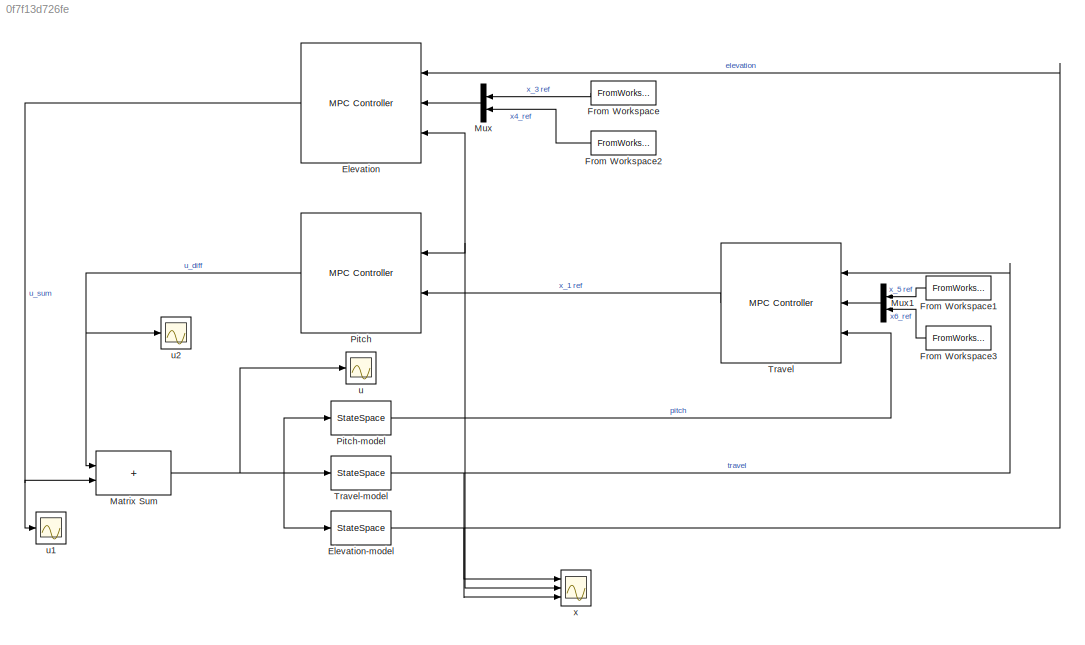
MODEL slx_0f7f13d726fe
KIND model
CONFIG AbsTol = auto
CONFIG EnableMultiTasking = off
CONFIG FixedStep = auto
CONFIG MaxStep = auto
CONFIG MinStep = auto
CONFIG RelTol = 1e-3
CONFIG SampleTimeConstraint = Unconstrained
CONFIG SolverName = VariableStepAuto
CONFIG StartTime = 0.0
CONFIG StopTime = 10.0
BLOCK [Reference] Elevation  REF=mpclib/MPC Controller  (lib defined in mdl_ae329e0e0455)
  NameLocation = top
  Ports = [3, 1]
  SCDEnableBlockLinearizationSpecification = on
  SourceBlock = mpclib/MPC Controller
  SourceProductBaseCode = MP
  SourceType = MPC
BLOCK [StateSpace] Elevation-model
  A = [0 1;-1.283 -0.11]
  B = B_elev
  C = [1 0;0 1]
  D = D_elev
  InitialCondition = 0
  Ports = [1, 1]
BLOCK [FromWorkspace] From Workspace
  NameLocation = top
  OutputAfterFinalValue = Holding final value
  SampleTime = 0.1
  VariableName = x3_ref
BLOCK [FromWorkspace] From Workspace1
  NameLocation = top
  OutputAfterFinalValue = Holding final value
  SampleTime = 0.1
  VariableName = x5_ref
BLOCK [FromWorkspace] From Workspace2
  NameLocation = top
  VariableName = x4_ref
BLOCK [FromWorkspace] From Workspace3
  NameLocation = top
  VariableName = x6_ref
BLOCK [Sum] Matrix Sum
  IconShape = rectangular
  Ports = [2, 1]
BLOCK [Mux] Mux
  DisplayOption = bar
  Inputs = 2
  NameLocation = top
  Ports = [2, 1]
BLOCK [Mux] Mux1
  DisplayOption = bar
  Inputs = 2
  NameLocation = top
  Ports = [2, 1]
BLOCK [Reference] Pitch  REF=mpclib/MPC Controller  (lib defined in mdl_ae329e0e0455)
  NameLocation = top
  Ports = [2, 1]
  SCDEnableBlockLinearizationSpecification = on
  SourceBlock = mpclib/MPC Controller
  SourceProductBaseCode = MP
  SourceType = MPC
BLOCK [StateSpace] Pitch-model
  A = A_pitch
  B = B_pitch
  C = C_pitch
  D = D_pitch
  InitialCondition = 0
  Ports = [1, 1]
BLOCK [Reference] Travel  REF=mpclib/MPC Controller  (lib defined in mdl_ae329e0e0455)
  NameLocation = top
  Ports = [3, 1]
  SCDEnableBlockLinearizationSpecification = on
  SourceBlock = mpclib/MPC Controller
  SourceProductBaseCode = MP
  SourceType = MPC
BLOCK [StateSpace] Travel-model
  A = A_travel
  B = B_travel
  C = C_travel
  D = D_travel
  InitialCondition = 0
  Ports = [1, 1]
BLOCK [Scope] u
  Floating = off
  NumInputPorts = 1
  Ports = [1]
  ScopeSpecificationString = Simulink.scopes.TimeScopeBlockCfg('CurrentConfiguration', extmgr.ConfigurationSet(extmgr.Configuration('Core','General UI',true),extmgr.Configuration('Core','Source UI',true),extmgr.Configuration('Sources','WiredSimulink',true,'DataLoggingVariableName','ScopeData2'),extmgr.Configuration('Visuals','Time Domain',true,'SerializedDisplays',{struct('MinYLimReal','-1.00497','MaxYLimReal','4.04472','YLab...<+1524ch>
BLOCK [Scope] u1
  Floating = off
  NumInputPorts = 1
  Ports = [1]
  ScopeSpecificationString = Simulink.scopes.TimeScopeBlockCfg('CurrentConfiguration', extmgr.ConfigurationSet(extmgr.Configuration('Core','General UI',true),extmgr.Configuration('Core','Source UI',true),extmgr.Configuration('Sources','WiredSimulink',true,'DataLoggingVariableName','ScopeData1'),extmgr.Configuration('Visuals','Time Domain',true,'SerializedDisplays',{struct('MinYLimReal','-0.37997','MaxYLimReal','3.41972','YLab...<+1513ch>
BLOCK [Scope] u2
  Floating = off
  NumInputPorts = 1
  Ports = [1]
  ScopeSpecificationString = Simulink.scopes.TimeScopeBlockCfg('CurrentConfiguration', extmgr.ConfigurationSet(extmgr.Configuration('Core','General UI',true),extmgr.Configuration('Core','Source UI',true),extmgr.Configuration('Sources','WiredSimulink',true,'DataLoggingVariableName','ScopeData2'),extmgr.Configuration('Visuals','Time Domain',true,'SerializedDisplays',{struct('MinYLimReal','-0.75','MaxYLimReal','1.75','YLabelReal...<+1497ch>
BLOCK [Scope] x
  Floating = off
  NumInputPorts = 3
  Ports = [3]
  ScopeSpecificationString = Simulink.scopes.TimeScopeBlockCfg('CurrentConfiguration', extmgr.ConfigurationSet(extmgr.Configuration('Core','General UI',true),extmgr.Configuration('Core','Source UI',true),extmgr.Configuration('Sources','WiredSimulink',true,'DataLoggingVariableName','ScopeData1'),extmgr.Configuration('Visuals','Time Domain',true,'SerializedDisplays',{struct('MinYLimReal','-1.8229','MaxYLimReal','8.55211','YLabe...<+1751ch>
NET Elevation-model:1 -> Elevation:1, x:1
NET Elevation:1 -> Matrix Sum:2, u1:1
LINE From Workspace1:1 -> Mux1:1
LINE From Workspace2:1 -> Mux:2
LINE From Workspace3:1 -> Mux1:2
LINE From Workspace:1 -> Mux:1
NET Matrix Sum:1 -> Elevation-model:1, Pitch-model:1, Travel-model:1, u:1
LINE Mux1:1 -> Travel:2
LINE Mux:1 -> Elevation:2
NET Pitch-model:1 -> Elevation:3, Pitch:1, Travel:3, x:2
NET Pitch:1 -> Matrix Sum:1, u2:1
NET Travel-model:1 -> Travel:1, x:3
LINE Travel:1 -> Pitch:2
note: NET lines group one-source signal fan-out (src -> all destinations, sorted); 1:1 wires keep LINE
